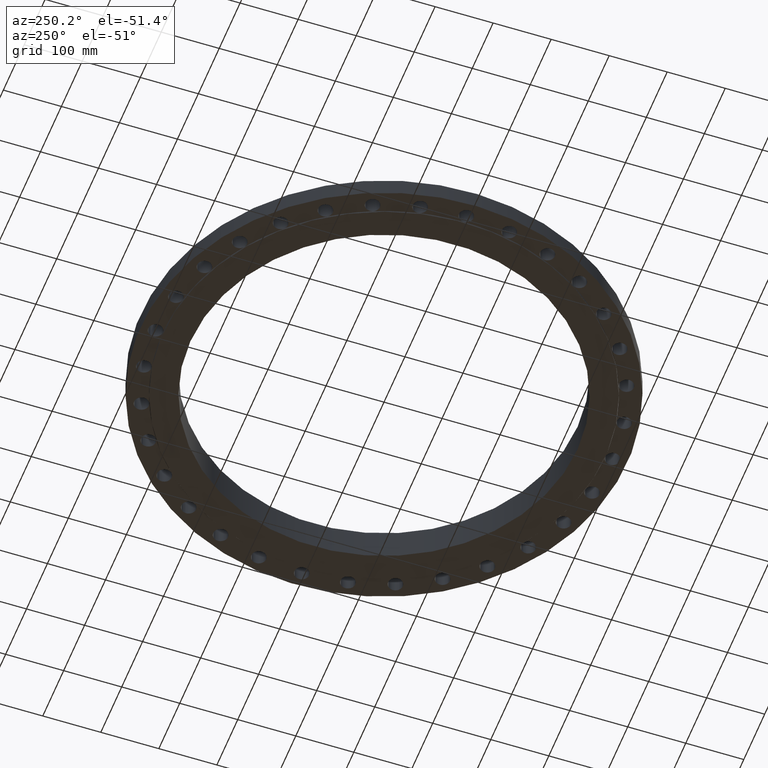
[diagram: clean part render]
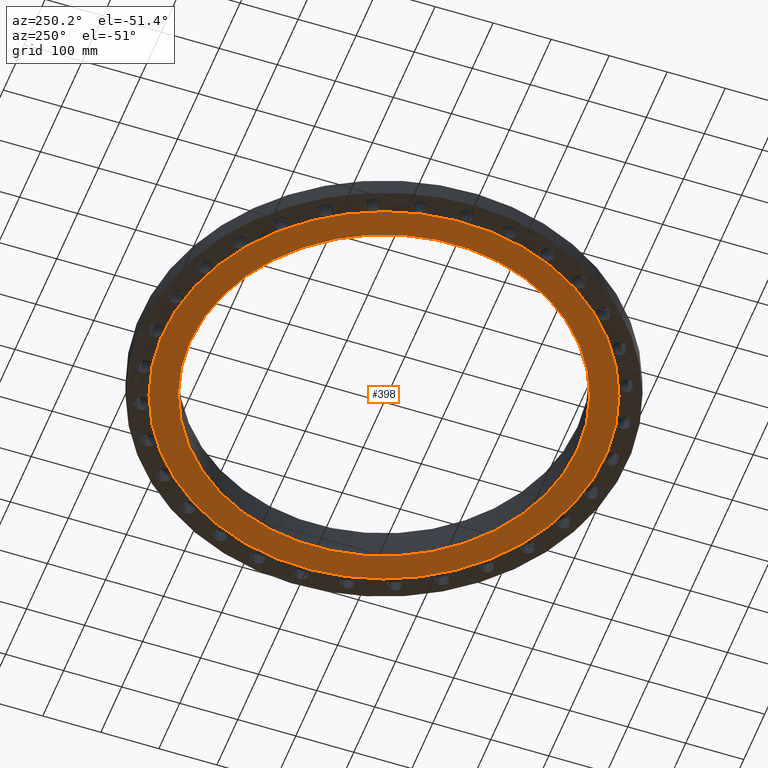
[diagram: same view with one face highlighted and labeled with its STEP entity id]
A machine part, auxiliary view. The second image highlights one B-rep face of the part: STEP entity #398.
In plain terms, the highlighted planar face has unit normal (0, 0, -1).
Its self-contained STEP definition (entity closure, byte-faithful):
#342=AXIS2_PLACEMENT_3D('Circle Axis2P3D',#340,#341,$) ;
#361=AXIS2_PLACEMENT_3D('Circle Axis2P3D',#359,#360,$) ;
#374=AXIS2_PLACEMENT_3D('Plane Axis2P3D',#371,#372,#373) ;
#378=AXIS2_PLACEMENT_3D('Circle Axis2P3D',#376,#377,$) ;
#387=AXIS2_PLACEMENT_3D('Circle Axis2P3D',#385,#386,$) ;
#337=CARTESIAN_POINT('Vertex',(6.29246019421,11.5182711249,-0.0625000000003)) ;
#340=CARTESIAN_POINT('Axis2P3D Location',(0.,0.,-0.0625000000003)) ;
#344=CARTESIAN_POINT('Vertex',(-6.29246019421,-11.5182711249,-0.0625000000003)) ;
#359=CARTESIAN_POINT('Axis2P3D Location',(0.,0.,-0.0625000000003)) ;
#371=CARTESIAN_POINT('Axis2P3D Location',(0.,13.1250000001,-0.0625000000003)) ;
#376=CARTESIAN_POINT('Axis2P3D Location',(0.,0.,-0.0625000000003)) ;
#380=CARTESIAN_POINT('Vertex',(-7.19138307909,-13.1637384284,-0.0625000000002)) ;
#382=CARTESIAN_POINT('Vertex',(7.19138307909,13.1637384284,-0.0625000000002)) ;
#385=CARTESIAN_POINT('Axis2P3D Location',(0.,0.,-0.0625000000003)) ;
#341=DIRECTION('Axis2P3D Direction',(0.,0.,-0.0393700787402)) ;
#360=DIRECTION('Axis2P3D Direction',(0.,0.,-0.0393700787402)) ;
#372=DIRECTION('Axis2P3D Direction',(0.,0.,-0.0393700787402)) ;
#373=DIRECTION('Axis2P3D XDirection',(0.0393700787402,0.,0.)) ;
#377=DIRECTION('Axis2P3D Direction',(0.,0.,-0.0393700787402)) ;
#386=DIRECTION('Axis2P3D Direction',(0.,0.,-0.0393700787402)) ;
#391=ORIENTED_EDGE('',*,*,#384,.T.) ;
#392=ORIENTED_EDGE('',*,*,#389,.T.) ;
#395=ORIENTED_EDGE('',*,*,#346,.F.) ;
#396=ORIENTED_EDGE('',*,*,#363,.F.) ;
#397=FACE_BOUND('',#394,.T.) ;
#398=ADVANCED_FACE('PartBody',(#393,#397),#375,.T.) ;
#343=CIRCLE('generated circle',#342,13.1250000001) ;
#362=CIRCLE('generated circle',#361,13.1250000001) ;
#379=CIRCLE('generated circle',#378,15.0000000001) ;
#388=CIRCLE('generated circle',#387,15.0000000001) ;
#346=EDGE_CURVE('',#338,#345,#343,.T.) ;
#363=EDGE_CURVE('',#345,#338,#362,.T.) ;
#384=EDGE_CURVE('',#381,#383,#379,.T.) ;
#389=EDGE_CURVE('',#383,#381,#388,.T.) ;
#390=EDGE_LOOP('',(#391,#392)) ;
#394=EDGE_LOOP('',(#395,#396)) ;
#393=FACE_OUTER_BOUND('',#390,.T.) ;
#375=PLANE('',#374) ;
#338=VERTEX_POINT('',#337) ;
#345=VERTEX_POINT('',#344) ;
#381=VERTEX_POINT('',#380) ;
#383=VERTEX_POINT('',#382) ;